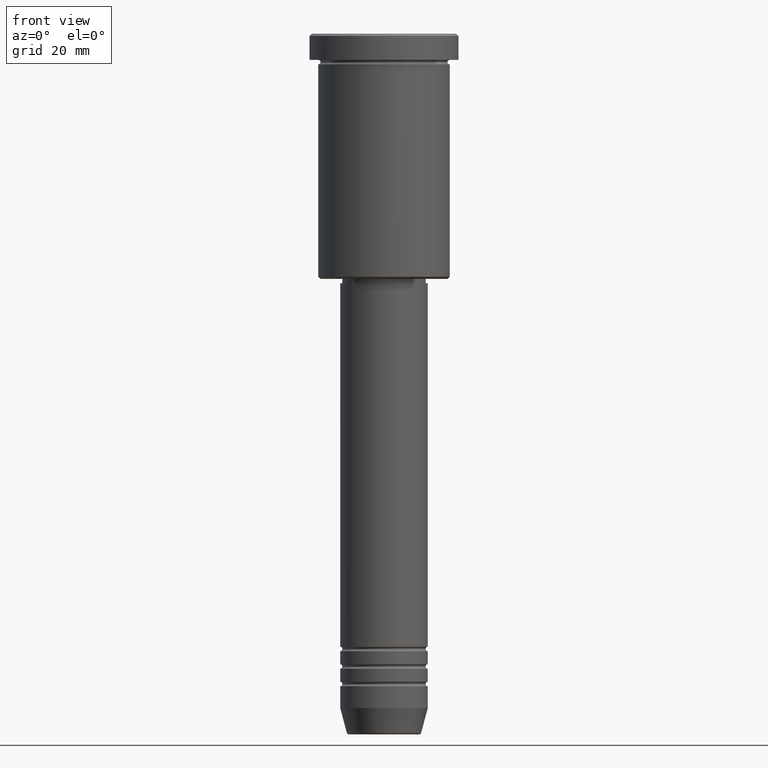
[diagram: clean part render]
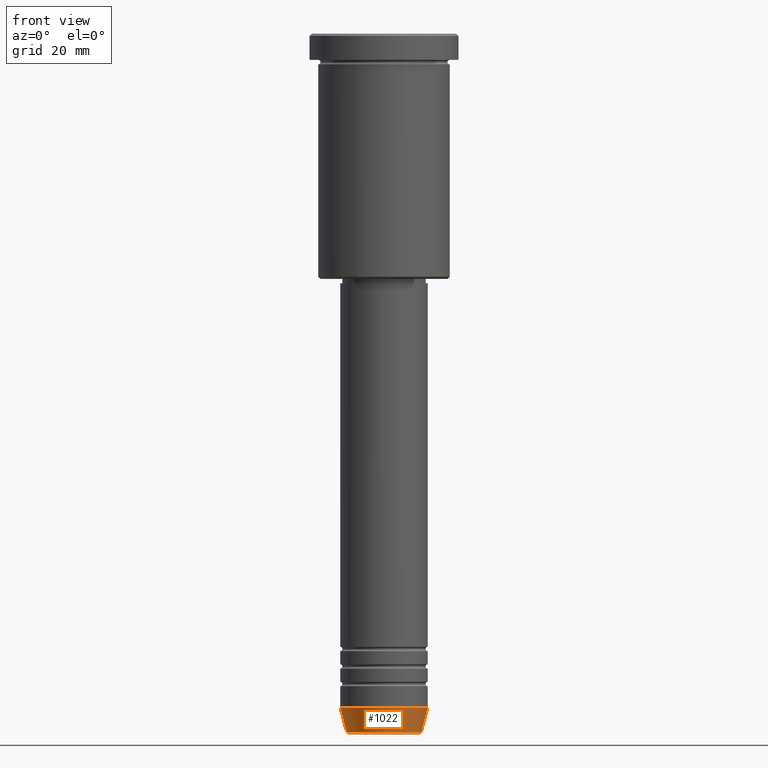
[diagram: same view with one face highlighted and labeled with its STEP entity id]
A machine part, front view. The second image highlights one B-rep face of the part: STEP entity #1022.
In plain terms, the highlighted conical surface has half-angle 15 deg.
Its self-contained STEP definition (entity closure, byte-faithful):
#10 = AXIS2_PLACEMENT_3D ( 'NONE', #651, #901, #542 ) ;
#35 = CIRCLE ( 'NONE', #10, 8.491604264568310967 ) ;
#96 = CARTESIAN_POINT ( 'NONE',  ( -8.491604264568310967, 1.132284198685156387E-15, -159.6294095225512990 ) ) ;
#101 = ORIENTED_EDGE ( 'NONE', *, *, #248, .F. ) ;
#102 = CARTESIAN_POINT ( 'NONE',  ( -10.00000000000000178, 1.224646799147353454E-15, -154.0000000000000000 ) ) ;
#109 = CARTESIAN_POINT ( 'NONE',  ( 10.00000000000000178, 0.000000000000000000, -154.0000000000000000 ) ) ;
#135 = CONICAL_SURFACE ( 'NONE', #1108, 10.00000000000000178, 0.2617993877991489637 ) ;
#248 = EDGE_CURVE ( 'NONE', #604, #804, #627, .T. ) ;
#258 = AXIS2_PLACEMENT_3D ( 'NONE', #577, #476, #288 ) ;
#265 = CARTESIAN_POINT ( 'NONE',  ( 0.000000000000000000, 0.000000000000000000, -154.0000000000000000 ) ) ;
#288 = DIRECTION ( 'NONE',  ( 1.000000000000000000, 0.000000000000000000, 0.000000000000000000 ) ) ;
#303 = DIRECTION ( 'NONE',  ( 0.2588190451025203509, 0.000000000000000000, 0.9659258262890684232 ) ) ;
#314 = LINE ( 'NONE', #102, #882 ) ;
#354 = VERTEX_POINT ( 'NONE', #752 ) ;
#411 = CARTESIAN_POINT ( 'NONE',  ( 10.00000000000000178, 0.000000000000000000, -154.0000000000000000 ) ) ;
#418 = DIRECTION ( 'NONE',  ( -0.2588190451025203509, 3.169619151431759395E-17, 0.9659258262890684232 ) ) ;
#423 = ORIENTED_EDGE ( 'NONE', *, *, #482, .F. ) ;
#466 = VERTEX_POINT ( 'NONE', #96 ) ;
#468 = VECTOR ( 'NONE', #303, 999.9999999999998863 ) ;
#476 = DIRECTION ( 'NONE',  ( -0.000000000000000000, -0.000000000000000000, 1.000000000000000000 ) ) ;
#482 = EDGE_CURVE ( 'NONE', #466, #604, #314, .T. ) ;
#489 = EDGE_CURVE ( 'NONE', #354, #804, #596, .T. ) ;
#542 = DIRECTION ( 'NONE',  ( 1.000000000000000000, 0.000000000000000000, 0.000000000000000000 ) ) ;
#543 = DIRECTION ( 'NONE',  ( -0.000000000000000000, -0.000000000000000000, 1.000000000000000000 ) ) ;
#552 = CARTESIAN_POINT ( 'NONE',  ( -10.00000000000000178, 1.224646799147353454E-15, -154.0000000000000000 ) ) ;
#577 = CARTESIAN_POINT ( 'NONE',  ( 0.000000000000000000, 0.000000000000000000, -154.0000000000000000 ) ) ;
#596 = LINE ( 'NONE', #411, #468 ) ;
#602 = ORIENTED_EDGE ( 'NONE', *, *, #632, .T. ) ;
#604 = VERTEX_POINT ( 'NONE', #552 ) ;
#627 = CIRCLE ( 'NONE', #258, 10.00000000000000178 ) ;
#632 = EDGE_CURVE ( 'NONE', #466, #354, #35, .T. ) ;
#651 = CARTESIAN_POINT ( 'NONE',  ( 0.000000000000000000, 0.000000000000000000, -159.6294095225512990 ) ) ;
#663 = FACE_OUTER_BOUND ( 'NONE', #1182, .T. ) ;
#736 = DIRECTION ( 'NONE',  ( 1.000000000000000000, 0.000000000000000000, 0.000000000000000000 ) ) ;
#752 = CARTESIAN_POINT ( 'NONE',  ( 8.491604264568310967, 0.000000000000000000, -159.6294095225512990 ) ) ;
#804 = VERTEX_POINT ( 'NONE', #109 ) ;
#875 = ORIENTED_EDGE ( 'NONE', *, *, #489, .T. ) ;
#882 = VECTOR ( 'NONE', #418, 999.9999999999998863 ) ;
#901 = DIRECTION ( 'NONE',  ( -0.000000000000000000, -0.000000000000000000, 1.000000000000000000 ) ) ;
#1022 = ADVANCED_FACE ( 'NONE', ( #663 ), #135, .T. ) ;
#1108 = AXIS2_PLACEMENT_3D ( 'NONE', #265, #543, #736 ) ;
#1182 = EDGE_LOOP ( 'NONE', ( #423, #602, #875, #101 ) ) ;